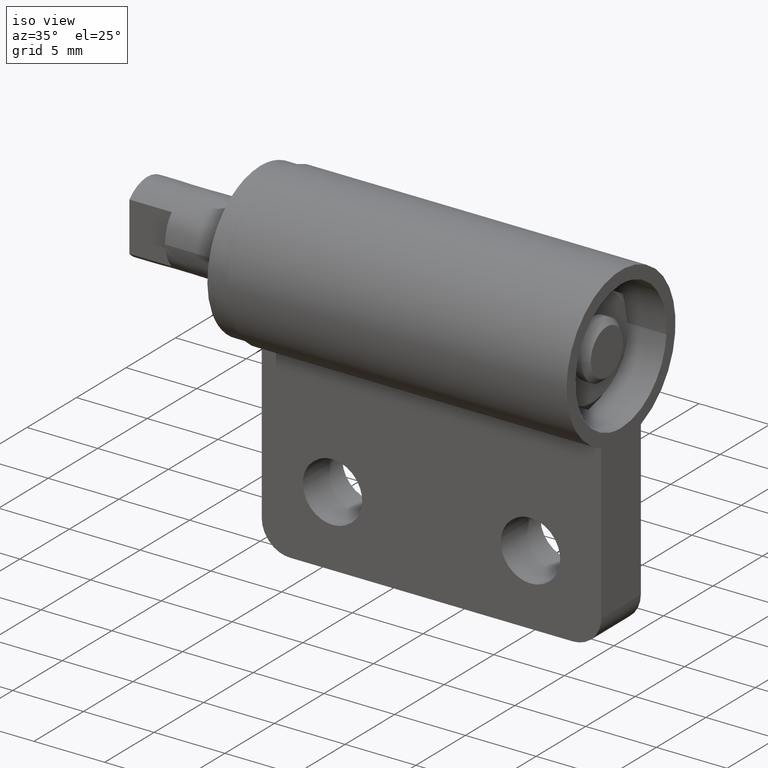
[diagram: clean part render]
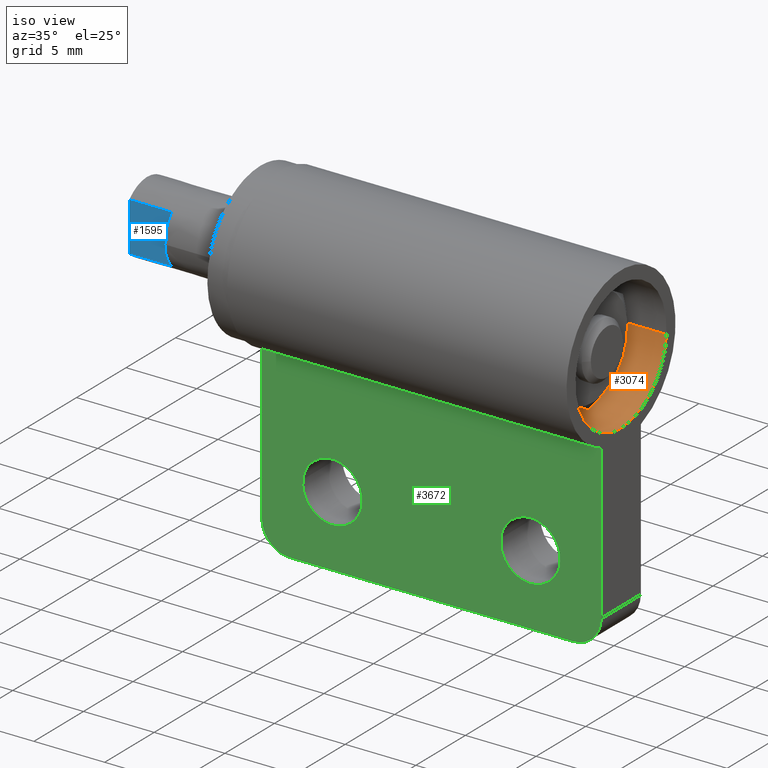
[diagram: same view with three faces highlighted in distinct colors, each labeled with its STEP entity id]
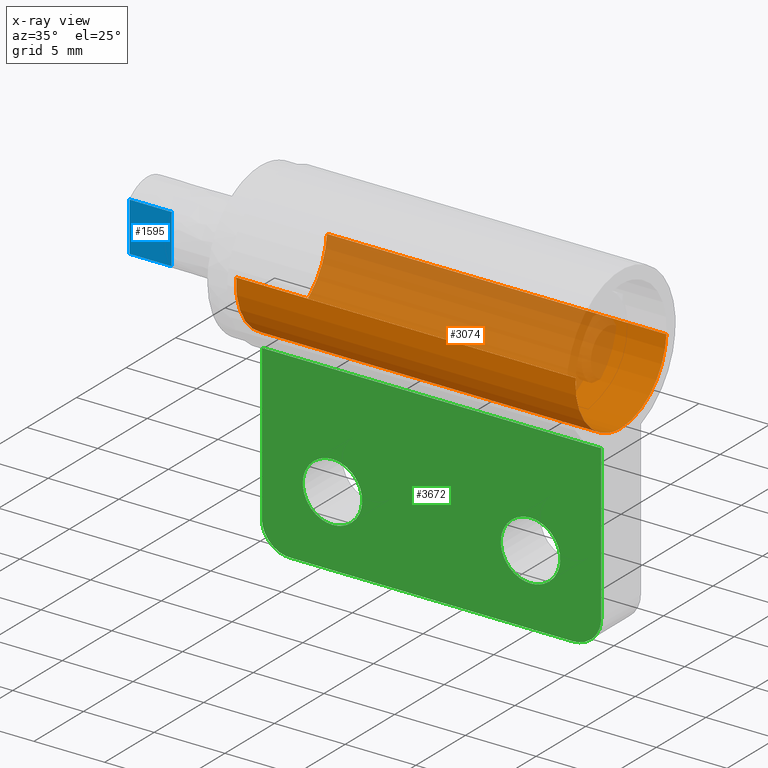
[diagram: x-ray of the same camera — body ghosted, the three highlighted faces saturated]
A machine part, iso view with three faces highlighted in distinct colors.
The next image is the same camera in x-ray (body ghosted, the three faces saturated) — at least one of them is partly hidden behind the body in this view.
Their STEP definitions:

[orange] entity #3074 — the highlighted face is a freeform B-spline surface patch.
#2913=CARTESIAN_POINT('',(6.499999999999995,-4.585819944711611,0.360909177880063));
#2914=VERTEX_POINT('',#2913);
#2928=CARTESIAN_POINT('',(6.499999999999993,4.585819944711611,-0.360909177880063));
#2929=VERTEX_POINT('',#2928);
#2945=CARTESIAN_POINT('',(30.500000000000000,4.585819942122170,-0.360909210782504));
#2946=VERTEX_POINT('',#2945);
#2947=CARTESIAN_POINT('',(30.500000000000000,4.585819942122170,-0.360909210782504));
#2948=CARTESIAN_POINT('',(6.499999999999993,4.585819944711611,-0.360909177880063));
#2949=QUASI_UNIFORM_CURVE('',1,(#2947,#2948),.UNSPECIFIED.,.F.,.U.);
#2950=EDGE_CURVE('',#2946,#2929,#2949,.T.);
#2969=CARTESIAN_POINT('',(30.500000000000000,-4.585819942122170,0.360909210782504));
#2970=VERTEX_POINT('',#2969);
#2984=CARTESIAN_POINT('',(30.500000000000000,-4.585819942122170,0.360909210782504));
#2985=CARTESIAN_POINT('',(6.499999999999995,-4.585819944711611,0.360909177880063));
#2986=QUASI_UNIFORM_CURVE('',1,(#2984,#2985),.UNSPECIFIED.,.F.,.U.);
#2987=EDGE_CURVE('',#2970,#2914,#2986,.T.);
#2992=CARTESIAN_POINT('',(31.100000000000009,4.585819735172388,-0.360911840348089));
#2993=CARTESIAN_POINT('',(31.100000000000001,4.224907894824299,-4.946731575520477));
#2994=CARTESIAN_POINT('',(31.100000000000009,-0.360911840348089,-4.585819735172388));
#2995=CARTESIAN_POINT('',(31.100000000000001,-4.946731575520477,-4.224907894824299));
#2996=CARTESIAN_POINT('',(31.100000000000009,-4.585819735172388,0.360911840348089));
#2997=CARTESIAN_POINT('',(5.884999999999998,4.585819735172388,-0.360911840348089));
#2998=CARTESIAN_POINT('',(5.884999999999998,4.224907894824299,-4.946731575520477));
#2999=CARTESIAN_POINT('',(5.884999999999998,-0.360911840348089,-4.585819735172388));
#3000=CARTESIAN_POINT('',(5.884999999999998,-4.946731575520477,-4.224907894824299));
#3001=CARTESIAN_POINT('',(5.884999999999998,-4.585819735172388,0.360911840348089));
#3009=(BOUNDED_SURFACE()B_SPLINE_SURFACE(2,1,((#2992,#2997),(#2993,#2998),(#2994,#2999),(#2995,#3000),(#2996,#3001)),.UNSPECIFIED.,.F.,.F.,.U.)B_SPLINE_SURFACE_WITH_KNOTS((3,2,3),(2,2),(0.0,7.621529547664949,15.243059095329899),(0.0,25.215000000000011),.UNSPECIFIED.)GEOMETRIC_REPRESENTATION_ITEM()RATIONAL_B_SPLINE_SURFACE(((1.0,1.0),(0.707106781186548,0.707106781186548),(1.0,1.0),(0.707106781186548,0.707106781186548),(1.0,1.0)))REPRESENTATION_ITEM('')SURFACE());
#3010=CARTESIAN_POINT('',(6.500000000000000,0.0,-4.600000000000000));
#3011=VERTEX_POINT('',#3010);
#3012=CARTESIAN_POINT('',(6.499999999999996,-4.585819944711611,0.360909177880063));
#3013=CARTESIAN_POINT('',(6.500000000000000,-4.600000000000000,0.180733154823508));
#3014=CARTESIAN_POINT('',(6.500000000000000,-4.600000000000000,0.0));
#3015=CARTESIAN_POINT('',(6.500000000000000,-4.600000000000000,-4.600000000000000));
#3016=CARTESIAN_POINT('',(6.500000000000000,0.0,-4.600000000000000));
#3024=(BOUNDED_CURVE()B_SPLINE_CURVE(2,(#3012,#3013,#3014,#3015,#3016),.UNSPECIFIED.,.F.,.U.)B_SPLINE_CURVE_WITH_KNOTS((3,2,3),(0.236331400159630,0.250000000000000,0.500000000000000),.UNSPECIFIED.)CURVE()GEOMETRIC_REPRESENTATION_ITEM()RATIONAL_B_SPLINE_CURVE((0.969723563876878,0.983986239184324,1.0,0.707106781186547,1.0))REPRESENTATION_ITEM(''));
#3025=EDGE_CURVE('',#2914,#3011,#3024,.T.);
#3026=ORIENTED_EDGE('',*,*,#3025,.F.);
#3027=ORIENTED_EDGE('',*,*,#2987,.F.);
#3028=CARTESIAN_POINT('',(30.500000000000000,0.0,-4.600000000000000));
#3029=VERTEX_POINT('',#3028);
#3030=CARTESIAN_POINT('',(30.500000000000000,-4.585819942122170,0.360909210782504));
#3031=CARTESIAN_POINT('',(30.500000000000007,-4.600000000000001,0.180733171351071));
#3032=CARTESIAN_POINT('',(30.500000000000000,-4.600000000000000,0.0));
#3033=CARTESIAN_POINT('',(30.500000000000004,-4.600000000000000,-4.600000000000000));
#3034=CARTESIAN_POINT('',(30.500000000000000,0.0,-4.600000000000000));
#3042=(BOUNDED_CURVE()B_SPLINE_CURVE(2,(#3030,#3031,#3032,#3033,#3034),.UNSPECIFIED.,.F.,.U.)B_SPLINE_CURVE_WITH_KNOTS((3,2,3),(0.236331398929689,0.250000000000000,0.500000000000000),.UNSPECIFIED.)CURVE()GEOMETRIC_REPRESENTATION_ITEM()RATIONAL_B_SPLINE_CURVE((0.969723561310084,0.983986237743359,1.0,0.707106781186547,1.0))REPRESENTATION_ITEM(''));
#3043=EDGE_CURVE('',#2970,#3029,#3042,.T.);
#3044=ORIENTED_EDGE('',*,*,#3043,.T.);
#3045=CARTESIAN_POINT('',(30.500000000000000,0.0,-4.600000000000000));
#3046=CARTESIAN_POINT('',(30.499999999999993,4.252198707429647,-4.599999999999999));
#3047=CARTESIAN_POINT('',(30.500000000000000,4.585819942122170,-0.360909210782504));
#3055=(BOUNDED_CURVE()B_SPLINE_CURVE(2,(#3045,#3046,#3047),.UNSPECIFIED.,.F.,.U.)B_SPLINE_CURVE_WITH_KNOTS((3,3),(0.500000000000000,0.736331398929689),.UNSPECIFIED.)CURVE()GEOMETRIC_REPRESENTATION_ITEM()RATIONAL_B_SPLINE_CURVE((1.0,0.723120543443189,0.969723561310084))REPRESENTATION_ITEM(''));
#3056=EDGE_CURVE('',#3029,#2946,#3055,.T.);
#3057=ORIENTED_EDGE('',*,*,#3056,.T.);
#3058=ORIENTED_EDGE('',*,*,#2950,.T.);
#3059=CARTESIAN_POINT('',(6.500000000000000,0.0,-4.600000000000000));
#3060=CARTESIAN_POINT('',(6.500000000000002,4.252198738032752,-4.599999999999999));
#3061=CARTESIAN_POINT('',(6.499999999999992,4.585819944711611,-0.360909177880063));
#3069=(BOUNDED_CURVE()B_SPLINE_CURVE(2,(#3059,#3060,#3061),.UNSPECIFIED.,.F.,.U.)B_SPLINE_CURVE_WITH_KNOTS((3,3),(0.500000000000000,0.736331400159630),.UNSPECIFIED.)CURVE()GEOMETRIC_REPRESENTATION_ITEM()RATIONAL_B_SPLINE_CURVE((1.0,0.723120542002224,0.969723563876878))REPRESENTATION_ITEM(''));
#3070=EDGE_CURVE('',#3011,#2929,#3069,.T.);
#3071=ORIENTED_EDGE('',*,*,#3070,.F.);
#3072=EDGE_LOOP('',(#3026,#3027,#3044,#3057,#3058,#3071));
#3073=FACE_OUTER_BOUND('',#3072,.T.);
#3074=ADVANCED_FACE('',(#3073),#3009,.F.);

[blue] entity #1595 — the highlighted face is a freeform B-spline surface patch.
#1247=CARTESIAN_POINT('',(0.0,-1.800003000000000,-1.734923999999895));
#1248=VERTEX_POINT('',#1247);
#1262=CARTESIAN_POINT('',(-3.0,-1.800003000000000,-1.734923999999895));
#1263=VERTEX_POINT('',#1262);
#1264=CARTESIAN_POINT('',(0.0,-1.800003000000000,-1.734923999999895));
#1265=CARTESIAN_POINT('',(-3.0,-1.800003000000000,-1.734923999999895));
#1266=QUASI_UNIFORM_CURVE('',1,(#1264,#1265),.UNSPECIFIED.,.F.,.U.);
#1267=EDGE_CURVE('',#1248,#1263,#1266,.T.);
#1334=CARTESIAN_POINT('',(-3.0,-1.800003000000000,1.734932044776115));
#1335=VERTEX_POINT('',#1334);
#1351=CARTESIAN_POINT('',(0.0,-1.800003000000000,1.734932044775995));
#1352=VERTEX_POINT('',#1351);
#1353=CARTESIAN_POINT('',(0.0,-1.800003000000000,1.734932044775995));
#1354=CARTESIAN_POINT('',(-3.0,-1.800003000000000,1.734932044776115));
#1355=QUASI_UNIFORM_CURVE('',1,(#1353,#1354),.UNSPECIFIED.,.F.,.U.);
#1356=EDGE_CURVE('',#1352,#1335,#1355,.T.);
#1554=CARTESIAN_POINT('',(0.0,-1.800003000000000,1.734932044775995));
#1555=CARTESIAN_POINT('',(0.0,-1.800003000000000,-1.734923999999895));
#1556=QUASI_UNIFORM_CURVE('',1,(#1554,#1555),.UNSPECIFIED.,.F.,.U.);
#1557=EDGE_CURVE('',#1352,#1248,#1556,.T.);
#1580=CARTESIAN_POINT('',(-3.149849994185419,-1.800003000000000,-1.908243270138677));
#1581=CARTESIAN_POINT('',(-3.149849994185419,-1.800003000000000,1.908251439006619));
#1582=CARTESIAN_POINT('',(0.149850074651688,-1.800003000000000,-1.908243270138677));
#1583=CARTESIAN_POINT('',(0.149850074651688,-1.800003000000000,1.908251439006619));
#1584=B_SPLINE_SURFACE_WITH_KNOTS('',1,1,((#1580,#1582),(#1581,#1583)),.UNSPECIFIED.,.F.,.F.,.U.,(2,2),(2,2),(0.0,3.816494709145295),(0.0,3.299700068837107),.UNSPECIFIED.);
#1585=CARTESIAN_POINT('',(-3.0,-1.800003000000000,1.734932044776115));
#1586=CARTESIAN_POINT('',(-3.0,-1.800003000000000,-1.734923999999895));
#1587=QUASI_UNIFORM_CURVE('',1,(#1585,#1586),.UNSPECIFIED.,.F.,.U.);
#1588=EDGE_CURVE('',#1335,#1263,#1587,.T.);
#1589=ORIENTED_EDGE('',*,*,#1588,.T.);
#1590=ORIENTED_EDGE('',*,*,#1267,.F.);
#1591=ORIENTED_EDGE('',*,*,#1557,.F.);
#1592=ORIENTED_EDGE('',*,*,#1356,.T.);
#1593=EDGE_LOOP('',(#1589,#1590,#1591,#1592));
#1594=FACE_OUTER_BOUND('',#1593,.T.);
#1595=ADVANCED_FACE('',(#1594),#1584,.F.);

[green] entity #3672 — the highlighted face is a freeform B-spline surface patch.
#3116=CARTESIAN_POINT('',(9.414679958975905,-2.0,-12.752128407228319));
#3117=VERTEX_POINT('',#3116);
#3123=CARTESIAN_POINT('',(11.500000000000000,-2.0,-15.100000000000000));
#3124=VERTEX_POINT('',#3123);
#3125=CARTESIAN_POINT('',(9.414679958975905,-2.000000000000000,-12.752128407228321));
#3126=CARTESIAN_POINT('',(9.400000000000000,-2.000000000000000,-12.875629651910135));
#3127=CARTESIAN_POINT('',(9.400000000000000,-2.0,-13.0));
#3128=CARTESIAN_POINT('',(9.400000000000000,-2.000000000000000,-15.100000000000001));
#3129=CARTESIAN_POINT('',(11.500000000000000,-2.0,-15.100000000000000));
#3137=(BOUNDED_CURVE()B_SPLINE_CURVE(2,(#3125,#3126,#3127,#3128,#3129),.UNSPECIFIED.,.F.,.U.)B_SPLINE_CURVE_WITH_KNOTS((3,2,3),(0.229562522143430,0.250000000000000,0.500000000000000),.UNSPECIFIED.)CURVE()GEOMETRIC_REPRESENTATION_ITEM()RATIONAL_B_SPLINE_CURVE((0.956026849500357,0.976056005304642,1.0,0.707106781186548,1.0))REPRESENTATION_ITEM(''));
#3138=EDGE_CURVE('',#3117,#3124,#3137,.T.);
#3140=CARTESIAN_POINT('',(13.596083076684570,-2.0,-13.128201933045361));
#3141=VERTEX_POINT('',#3140);
#3142=CARTESIAN_POINT('',(11.500000000000000,-2.0,-15.100000000000000));
#3143=CARTESIAN_POINT('',(13.475482740460128,-2.000000000000000,-15.099999999999996));
#3144=CARTESIAN_POINT('',(13.596083076684570,-2.000000000000000,-13.128201933045359));
#3152=(BOUNDED_CURVE()B_SPLINE_CURVE(2,(#3142,#3143,#3144),.UNSPECIFIED.,.F.,.U.)B_SPLINE_CURVE_WITH_KNOTS((3,3),(0.500000000000000,0.739332962238321),.UNSPECIFIED.)CURVE()GEOMETRIC_REPRESENTATION_ITEM()RATIONAL_B_SPLINE_CURVE((1.0,0.719603993287439,0.976072041665385))REPRESENTATION_ITEM(''));
#3153=EDGE_CURVE('',#3124,#3141,#3152,.T.);
#3227=CARTESIAN_POINT('',(11.500000000000000,-2.0,-10.900000000000000));
#3228=VERTEX_POINT('',#3227);
#3229=CARTESIAN_POINT('',(13.596083076684563,-2.0,-13.128201933045361));
#3230=CARTESIAN_POINT('',(13.600000000000001,-2.000000000000000,-13.064160802949255));
#3231=CARTESIAN_POINT('',(13.600000000000000,-2.0,-13.0));
#3232=CARTESIAN_POINT('',(13.600000000000003,-2.000000000000000,-10.900000000000000));
#3233=CARTESIAN_POINT('',(11.500000000000000,-2.0,-10.900000000000000));
#3241=(BOUNDED_CURVE()B_SPLINE_CURVE(2,(#3229,#3230,#3231,#3232,#3233),.UNSPECIFIED.,.F.,.U.)B_SPLINE_CURVE_WITH_KNOTS((3,2,3),(0.739332962238320,0.750000000000000,1.0),.UNSPECIFIED.)CURVE()GEOMETRIC_REPRESENTATION_ITEM()RATIONAL_B_SPLINE_CURVE((0.976072041665384,0.987502787899108,1.0,0.707106781186548,1.0))REPRESENTATION_ITEM(''));
#3242=EDGE_CURVE('',#3141,#3228,#3241,.T.);
#3244=CARTESIAN_POINT('',(11.500000000000000,-2.0,-10.900000000000000));
#3245=CARTESIAN_POINT('',(9.634832955054446,-2.000000000000000,-10.900000000000000));
#3246=CARTESIAN_POINT('',(9.414679958975903,-2.000000000000000,-12.752128407228323));
#3254=(BOUNDED_CURVE()B_SPLINE_CURVE(2,(#3244,#3245,#3246),.UNSPECIFIED.,.F.,.U.)B_SPLINE_CURVE_WITH_KNOTS((3,3),(0.0,0.229562522143430),.UNSPECIFIED.)CURVE()GEOMETRIC_REPRESENTATION_ITEM()RATIONAL_B_SPLINE_CURVE((1.0,0.731050775881906,0.956026849500357))REPRESENTATION_ITEM(''));
#3255=EDGE_CURVE('',#3228,#3117,#3254,.T.);
#3302=CARTESIAN_POINT('',(23.414679958975899,-2.0,-12.752128407228319));
#3303=VERTEX_POINT('',#3302);
#3309=CARTESIAN_POINT('',(25.500000000000000,-2.0,-15.100000000000000));
#3310=VERTEX_POINT('',#3309);
#3311=CARTESIAN_POINT('',(23.414679958975899,-2.000000000000000,-12.752128407228321));
#3312=CARTESIAN_POINT('',(23.399999999999995,-2.000000000000000,-12.875629651910135));
#3313=CARTESIAN_POINT('',(23.399999999999999,-2.0,-13.0));
#3314=CARTESIAN_POINT('',(23.399999999999999,-2.000000000000000,-15.100000000000001));
#3315=CARTESIAN_POINT('',(25.500000000000000,-2.0,-15.100000000000000));
#3323=(BOUNDED_CURVE()B_SPLINE_CURVE(2,(#3311,#3312,#3313,#3314,#3315),.UNSPECIFIED.,.F.,.U.)B_SPLINE_CURVE_WITH_KNOTS((3,2,3),(0.229562522143430,0.250000000000000,0.500000000000000),.UNSPECIFIED.)CURVE()GEOMETRIC_REPRESENTATION_ITEM()RATIONAL_B_SPLINE_CURVE((0.956026849500357,0.976056005304642,1.0,0.707106781186548,1.0))REPRESENTATION_ITEM(''));
#3324=EDGE_CURVE('',#3303,#3310,#3323,.T.);
#3326=CARTESIAN_POINT('',(27.596083076684572,-2.0,-13.128201933045361));
#3327=VERTEX_POINT('',#3326);
#3328=CARTESIAN_POINT('',(25.500000000000000,-2.0,-15.100000000000000));
#3329=CARTESIAN_POINT('',(27.475482740460119,-2.000000000000000,-15.099999999999996));
#3330=CARTESIAN_POINT('',(27.596083076684568,-2.000000000000000,-13.128201933045359));
#3338=(BOUNDED_CURVE()B_SPLINE_CURVE(2,(#3328,#3329,#3330),.UNSPECIFIED.,.F.,.U.)B_SPLINE_CURVE_WITH_KNOTS((3,3),(0.500000000000000,0.739332962238321),.UNSPECIFIED.)CURVE()GEOMETRIC_REPRESENTATION_ITEM()RATIONAL_B_SPLINE_CURVE((1.0,0.719603993287439,0.976072041665385))REPRESENTATION_ITEM(''));
#3339=EDGE_CURVE('',#3310,#3327,#3338,.T.);
#3413=CARTESIAN_POINT('',(25.500000000000000,-2.0,-10.900000000000000));
#3414=VERTEX_POINT('',#3413);
#3415=CARTESIAN_POINT('',(27.596083076684565,-2.000000000000000,-13.128201933045355));
#3416=CARTESIAN_POINT('',(27.600000000000001,-2.000000000000000,-13.064160802949258));
#3417=CARTESIAN_POINT('',(27.600000000000001,-2.0,-13.0));
#3418=CARTESIAN_POINT('',(27.599999999999994,-2.000000000000000,-10.900000000000000));
#3419=CARTESIAN_POINT('',(25.500000000000000,-2.0,-10.900000000000000));
#3427=(BOUNDED_CURVE()B_SPLINE_CURVE(2,(#3415,#3416,#3417,#3418,#3419),.UNSPECIFIED.,.F.,.U.)B_SPLINE_CURVE_WITH_KNOTS((3,2,3),(0.739332962238320,0.750000000000000,1.0),.UNSPECIFIED.)CURVE()GEOMETRIC_REPRESENTATION_ITEM()RATIONAL_B_SPLINE_CURVE((0.976072041665383,0.987502787899108,1.0,0.707106781186548,1.0))REPRESENTATION_ITEM(''));
#3428=EDGE_CURVE('',#3327,#3414,#3427,.T.);
#3430=CARTESIAN_POINT('',(25.500000000000000,-2.0,-10.900000000000000));
#3431=CARTESIAN_POINT('',(23.634832955054442,-2.000000000000000,-10.900000000000000));
#3432=CARTESIAN_POINT('',(23.414679958975899,-2.000000000000000,-12.752128407228323));
#3440=(BOUNDED_CURVE()B_SPLINE_CURVE(2,(#3430,#3431,#3432),.UNSPECIFIED.,.F.,.U.)B_SPLINE_CURVE_WITH_KNOTS((3,3),(0.0,0.229562522143430),.UNSPECIFIED.)CURVE()GEOMETRIC_REPRESENTATION_ITEM()RATIONAL_B_SPLINE_CURVE((1.0,0.731050775881906,0.956026849500357))REPRESENTATION_ITEM(''));
#3441=EDGE_CURVE('',#3414,#3303,#3440,.T.);
#3461=CARTESIAN_POINT('',(6.500000000000000,-2.0,-15.999991999999899));
#3462=VERTEX_POINT('',#3461);
#3463=CARTESIAN_POINT('',(8.500000000000000,-2.0,-17.999991999999899));
#3464=VERTEX_POINT('',#3463);
#3465=CARTESIAN_POINT('',(6.500000000000001,-2.0,-15.999991999999899));
#3466=CARTESIAN_POINT('',(6.500000000000003,-2.000000000000000,-17.999991999999907));
#3467=CARTESIAN_POINT('',(8.500000000000000,-2.0,-17.999991999999899));
#3475=(BOUNDED_CURVE()B_SPLINE_CURVE(2,(#3465,#3466,#3467),.UNSPECIFIED.,.F.,.U.)CURVE()GEOMETRIC_REPRESENTATION_ITEM()QUASI_UNIFORM_CURVE()RATIONAL_B_SPLINE_CURVE((1.0,0.707106781186548,1.0))REPRESENTATION_ITEM(''));
#3476=EDGE_CURVE('',#3462,#3464,#3475,.T.);
#3522=CARTESIAN_POINT('',(28.500000000000000,-2.0,-17.999991999999899));
#3523=VERTEX_POINT('',#3522);
#3524=CARTESIAN_POINT('',(30.500000000000000,-2.0,-15.999991999999899));
#3525=VERTEX_POINT('',#3524);
#3526=CARTESIAN_POINT('',(28.500000000000000,-2.0,-17.999991999999899));
#3527=CARTESIAN_POINT('',(30.499999999999996,-2.000000000000000,-17.999991999999907));
#3528=CARTESIAN_POINT('',(30.500000000000000,-2.0,-15.999991999999899));
#3536=(BOUNDED_CURVE()B_SPLINE_CURVE(2,(#3526,#3527,#3528),.UNSPECIFIED.,.F.,.U.)CURVE()GEOMETRIC_REPRESENTATION_ITEM()QUASI_UNIFORM_CURVE()RATIONAL_B_SPLINE_CURVE((1.0,0.707106781186548,1.0))REPRESENTATION_ITEM(''));
#3537=EDGE_CURVE('',#3523,#3525,#3536,.T.);
#3622=CARTESIAN_POINT('',(28.500000000000000,-2.0,-17.999991999999899));
#3623=CARTESIAN_POINT('',(8.500000000000000,-2.0,-17.999991999999899));
#3624=QUASI_UNIFORM_CURVE('',1,(#3622,#3623),.UNSPECIFIED.,.F.,.U.);
#3625=EDGE_CURVE('',#3523,#3464,#3624,.T.);
#3631=CARTESIAN_POINT('',(5.301200046516657,-2.0,-18.643174532644860));
#3632=CARTESIAN_POINT('',(5.301200046516657,-2.0,-4.480291582480083));
#3633=CARTESIAN_POINT('',(31.698800597213509,-2.0,-18.643174532644860));
#3634=CARTESIAN_POINT('',(31.698800597213509,-2.0,-4.480291582480083));
#3635=B_SPLINE_SURFACE_WITH_KNOTS('',1,1,((#3631,#3633),(#3632,#3634)),.UNSPECIFIED.,.F.,.F.,.U.,(2,2),(2,2),(0.0,14.162882950164780),(0.0,26.397600550696861),.UNSPECIFIED.);
#3636=ORIENTED_EDGE('',*,*,#3625,.F.);
#3637=ORIENTED_EDGE('',*,*,#3537,.T.);
#3638=CARTESIAN_POINT('',(30.500000000000000,-2.0,-5.123474000000000));
#3639=VERTEX_POINT('',#3638);
#3640=CARTESIAN_POINT('',(30.500000000000000,-2.0,-5.123474000000000));
#3641=CARTESIAN_POINT('',(30.500000000000000,-2.0,-15.999991999999899));
#3642=QUASI_UNIFORM_CURVE('',1,(#3640,#3641),.UNSPECIFIED.,.F.,.U.);
#3643=EDGE_CURVE('',#3639,#3525,#3642,.T.);
#3644=ORIENTED_EDGE('',*,*,#3643,.F.);
#3645=CARTESIAN_POINT('',(6.500000000000000,-2.0,-5.123474000000000));
#3646=VERTEX_POINT('',#3645);
#3647=CARTESIAN_POINT('',(30.500000000000000,-2.0,-5.123474000000000));
#3648=CARTESIAN_POINT('',(6.500000000000000,-2.0,-5.123474000000000));
#3649=QUASI_UNIFORM_CURVE('',1,(#3647,#3648),.UNSPECIFIED.,.F.,.U.);
#3650=EDGE_CURVE('',#3639,#3646,#3649,.T.);
#3651=ORIENTED_EDGE('',*,*,#3650,.T.);
#3652=CARTESIAN_POINT('',(6.500000000000000,-2.0,-5.123474000000000));
#3653=CARTESIAN_POINT('',(6.500000000000000,-2.0,-15.999991999999899));
#3654=QUASI_UNIFORM_CURVE('',1,(#3652,#3653),.UNSPECIFIED.,.F.,.U.);
#3655=EDGE_CURVE('',#3646,#3462,#3654,.T.);
#3656=ORIENTED_EDGE('',*,*,#3655,.T.);
#3657=ORIENTED_EDGE('',*,*,#3476,.T.);
#3658=EDGE_LOOP('',(#3636,#3637,#3644,#3651,#3656,#3657));
#3659=FACE_OUTER_BOUND('',#3658,.T.);
#3660=ORIENTED_EDGE('',*,*,#3339,.F.);
#3661=ORIENTED_EDGE('',*,*,#3324,.F.);
#3662=ORIENTED_EDGE('',*,*,#3441,.F.);
#3663=ORIENTED_EDGE('',*,*,#3428,.F.);
#3664=EDGE_LOOP('',(#3660,#3661,#3662,#3663));
#3665=FACE_BOUND('',#3664,.T.);
#3666=ORIENTED_EDGE('',*,*,#3153,.F.);
#3667=ORIENTED_EDGE('',*,*,#3138,.F.);
#3668=ORIENTED_EDGE('',*,*,#3255,.F.);
#3669=ORIENTED_EDGE('',*,*,#3242,.F.);
#3670=EDGE_LOOP('',(#3666,#3667,#3668,#3669));
#3671=FACE_BOUND('',#3670,.T.);
#3672=ADVANCED_FACE('',(#3659,#3665,#3671),#3635,.F.);